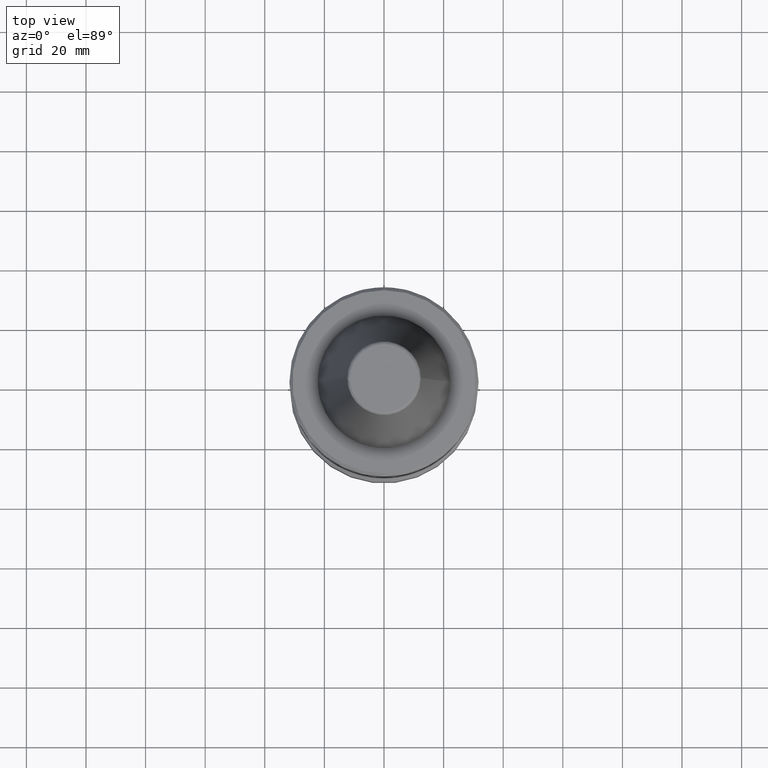
[diagram: clean part render]
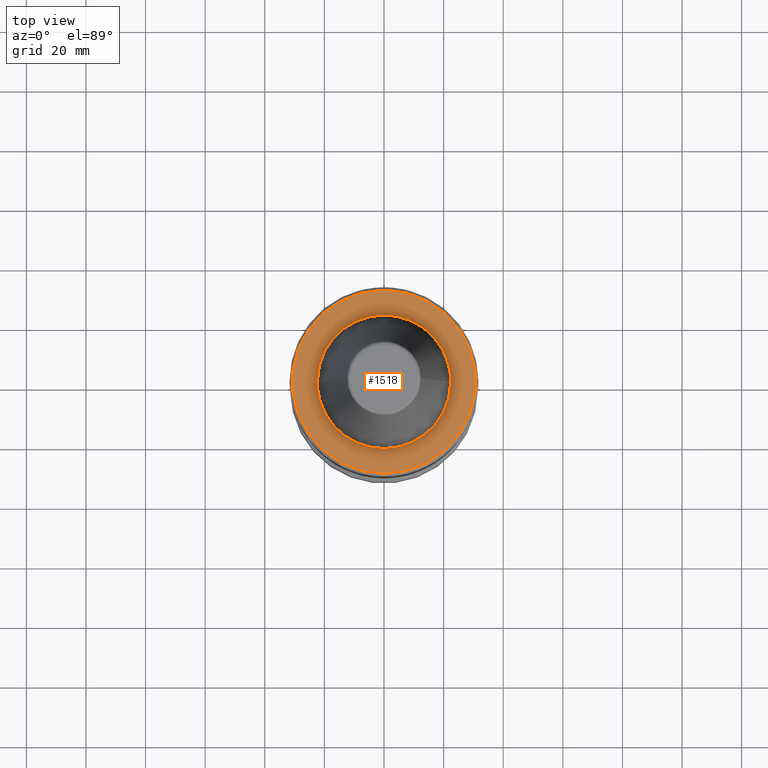
[diagram: same view with one face highlighted and labeled with its STEP entity id]
A machine part, top view. The second image highlights one B-rep face of the part: STEP entity #1518.
In plain terms, the highlighted planar face has unit normal (0, 0, 1).
Its self-contained STEP definition (entity closure, byte-faithful):
#12 = CARTESIAN_POINT ( 'NONE',  ( 11.93926672234661600, 18.95319761189779900, -3.200000000000000200 ) ) ;
#22 = CARTESIAN_POINT ( 'NONE',  ( 19.73326017952800600, 10.64749209983573800, -3.200000000000000600 ) ) ;
#26 = CARTESIAN_POINT ( 'NONE',  ( 22.00934566652811600, 4.165236834129904000, -3.199999999999999700 ) ) ;
#31 = CARTESIAN_POINT ( 'NONE',  ( -19.10378740212566800, 11.69915882717799400, -3.200000000000000200 ) ) ;
#35 = CARTESIAN_POINT ( 'NONE',  ( -11.62407890250933200, 19.16283711776219100, -3.200000000000000600 ) ) ;
#37 = VERTEX_POINT ( 'NONE', #606 ) ;
#41 = CARTESIAN_POINT ( 'NONE',  ( -4.232134916872230000, 21.99665153859961500, -3.199999999999999300 ) ) ;
#51 = CARTESIAN_POINT ( 'NONE',  ( 4.033857983350539000, 22.03380165289005200, -3.199999999999999700 ) ) ;
#63 = CARTESIAN_POINT ( 'NONE',  ( 4.120618964739917600, -22.01774244159595300, -3.199999999999998800 ) ) ;
#65 = CARTESIAN_POINT ( 'NONE',  ( 22.35325503157195500, -1.708173286637779000, -3.199999999999999300 ) ) ;
#72 = FACE_OUTER_BOUND ( 'NONE', #462, .T. ) ;
#73 = CARTESIAN_POINT ( 'NONE',  ( -4.790134707266156900, -21.89390021214669000, -3.200000000000000200 ) ) ;
#74 = CARTESIAN_POINT ( 'NONE',  ( 20.89346074641959900, -8.076228125856765400, -3.200000000000000600 ) ) ;
#77 = CARTESIAN_POINT ( 'NONE',  ( -12.09879233618214300, -18.85174391164229500, -3.199999999999999700 ) ) ;
#79 = CARTESIAN_POINT ( 'NONE',  ( 14.43493962123207900, -17.15946693183769500, -3.200000000000000200 ) ) ;
#86 = CARTESIAN_POINT ( 'NONE',  ( -20.30988273405735400, -9.461840305276322000, -3.200000000000001100 ) ) ;
#87 = CARTESIAN_POINT ( 'NONE',  ( 8.287526769556091500, -20.81054813449515700, -3.199999999999999700 ) ) ;
#94 = CARTESIAN_POINT ( 'NONE',  ( -22.01774244185277100, -4.120618964732502200, -3.199999999999999700 ) ) ;
#102 = EDGE_CURVE ( 'NONE', #37, #1022, #1876, .T. ) ;
#118 = CARTESIAN_POINT ( 'NONE',  ( -22.05288208983766300, 3.928562165238993500, -3.200000000000000200 ) ) ;
#119 = CIRCLE ( 'NONE', #289, 30.75000000000005700 ) ;
#153 = CARTESIAN_POINT ( 'NONE',  ( 0.0000000000000000000, 0.0000000000000000000, -3.200000000000036100 ) ) ;
#157 = CARTESIAN_POINT ( 'NONE',  ( 5.846925097339448200, 21.64494739346537200, -3.200000000000001100 ) ) ;
#165 = CARTESIAN_POINT ( 'NONE',  ( 12.17662042402640000, 18.80157304466486700, -3.199999999999999700 ) ) ;
#170 = CARTESIAN_POINT ( 'NONE',  ( 20.57597625700413600, 8.857439276734092800, -3.200000000000000200 ) ) ;
#176 = CARTESIAN_POINT ( 'NONE',  ( 22.02214483845452300, 4.097019922437556100, -3.199999999999999700 ) ) ;
#184 = CARTESIAN_POINT ( 'NONE',  ( -18.85174391178525300, 12.09879233613577300, -3.200000000000000600 ) ) ;
#193 = CARTESIAN_POINT ( 'NONE',  ( -9.461840305300203400, 20.30988273388436800, -3.200000000000000600 ) ) ;
#198 = CARTESIAN_POINT ( 'NONE',  ( -4.120618964735781400, 22.01774244159689400, -3.200000000000000200 ) ) ;
#220 = CARTESIAN_POINT ( 'NONE',  ( 2.729104585065736300, -22.27531430427199100, -3.200000000000000200 ) ) ;
#221 = CARTESIAN_POINT ( 'NONE',  ( 22.12829487095392600, -3.485869751669867300, -3.200000000000000200 ) ) ;
#226 = CARTESIAN_POINT ( 'NONE',  ( -7.054554276473416200, -21.26570261097682400, -3.200000000000000600 ) ) ;
#228 = CARTESIAN_POINT ( 'NONE',  ( 20.84466756713284900, -8.201342718980848500, -3.199999999999999700 ) ) ;
#234 = CARTESIAN_POINT ( 'NONE',  ( -13.55154730268490600, -17.90272195314502600, -3.199999999999999700 ) ) ;
#236 = CARTESIAN_POINT ( 'NONE',  ( 12.81838125876502100, -18.37163761246610600, -3.200000000000000200 ) ) ;
#240 = CARTESIAN_POINT ( 'NONE',  ( 3.827021247335484400E-015, -30.75000000000005700, -3.200000000000036100 ) ) ;
#245 = CARTESIAN_POINT ( 'NONE',  ( -20.70346857988444000, -8.552344979681706100, -3.200000000000000200 ) ) ;
#247 = B_SPLINE_CURVE_WITH_KNOTS ( 'NONE', 3,
 ( #1456, #413, #1751, #866, #1902, #1024, #118, #1172, #278, #1319, #420, #1466, #573, #1610, #716, #1766, #874, #1909, #1034, #437, #927, #31, #1081, #184, #1228, #332, #1374, #481, #1525, #635, #1675, #775, #1820, #935, #35, #1084, #193, #1237, #333, #1379, #490, #1528, #640, #1681, #783, #1824, #941, #41, #1091, #198, #1243, #341, #1383, #495, #1536, #647, #1685, #792, #1833, #949, #51, #1101, #1059, #157, #1201, #310, #1351, #459, #1498, #614, #1648, #750, #1795, #912, #12, #1063, #165, #1209, #312, #1357, #468, #1505, #616, #1657, #758, #1801, #916, #22, #1067, #170, #1218, #319, #1359, #473, #1514, #623, #1662, #766, #1808, #921, #26, #1076, #176, #1223, #662, #1705 ),
 .UNSPECIFIED., .F., .F.,
 ( 4, 1, 1, 1, 1, 1, 2, 2, 1, 1, 1, 1, 2, 2, 1, 1, 1, 2, 2, 2, 1, 1, 1, 2, 2, 1, 1, 1, 1, 2, 2, 1, 1, 1, 1, 1, 2, 2, 2, 1, 1, 1, 1, 1, 2, 2, 1, 1, 1, 1, 2, 2, 1, 1, 1, 2, 2, 2, 1, 1, 1, 2, 2, 1, 1, 1, 1, 2, 2, 1, 1, 1, 1, 1, 2, 2, 4 ),
 ( 0.0000000000000000000, 0.03124999999999886200, 0.04687499999999829300, 0.05468749999999800200, 0.05859374999999785600, 0.06054687499999776600, 0.06152343749999775900, 0.06249999999999775200, 0.09374999999999736300, 0.1093749999999971800, 0.1171874999999970900, 0.1210937499999970400, 0.1230468749999970400, 0.1249999999999970600, 0.1562499999999970900, 0.1718749999999971100, 0.1796874999999971400, 0.1835937499999972000, 0.1874999999999972500, 0.2499999999999975600, 0.2812499999999976100, 0.2968749999999977200, 0.3046874999999978400, 0.3085937499999978900, 0.3124999999999978900, 0.3437499999999986100, 0.3593749999999990600, 0.3671874999999992800, 0.3710937499999993900, 0.3730468749999993900, 0.3749999999999994400, 0.4062499999999997200, 0.4218749999999998900, 0.4296875000000000000, 0.4335937500000001100, 0.4355468750000001100, 0.4365234375000001700, 0.4375000000000001700, 0.5000000000000030000, 0.5312500000000044400, 0.5468750000000051100, 0.5546875000000054400, 0.5585937500000056600, 0.5605468750000056600, 0.5615234375000056600, 0.5625000000000055500, 0.5937500000000055500, 0.6093750000000055500, 0.6171875000000055500, 0.6210937500000054400, 0.6230468750000055500, 0.6250000000000055500, 0.6562500000000054400, 0.6718750000000054400, 0.6796875000000053300, 0.6835937500000053300, 0.6875000000000052200, 0.7500000000000037700, 0.7812500000000031100, 0.7968750000000027800, 0.8046875000000025500, 0.8085937500000024400, 0.8125000000000022200, 0.8437500000000017800, 0.8593750000000015500, 0.8671875000000015500, 0.8710937500000014400, 0.8730468750000015500, 0.8750000000000015500, 0.9062500000000005600, 0.9218750000000001100, 0.9296874999999997800, 0.9335937499999996700, 0.9355468749999995600, 0.9365234374999995600, 0.9374999999999994400, 1.000000000000000000 ),
 .UNSPECIFIED. ) ;
#249 = CARTESIAN_POINT ( 'NONE',  ( -22.27534675083843800, -2.728929272534675200, -3.199999999999999700 ) ) ;
#278 = CARTESIAN_POINT ( 'NONE',  ( -22.03380064764238700, 4.033863417683678100, -3.200000000000000600 ) ) ;
#289 = AXIS2_PLACEMENT_3D ( 'NONE', #153, #1198, #307 ) ;
#307 = DIRECTION ( 'NONE',  ( 1.000000000000000000, 0.0000000000000000000, 0.0000000000000000000 ) ) ;
#310 = CARTESIAN_POINT ( 'NONE',  ( 7.652045630527966900, 21.05388026285381600, -3.200000000000000200 ) ) ;
#312 = CARTESIAN_POINT ( 'NONE',  ( 14.74595008192743300, 16.93238115486318000, -3.200000000000000200 ) ) ;
#319 = CARTESIAN_POINT ( 'NONE',  ( 20.75691790999887900, 8.420970184616752600, -3.199999999999999300 ) ) ;
#332 = CARTESIAN_POINT ( 'NONE',  ( -17.90272195326314600, 13.55154730262204600, -3.199999999999999700 ) ) ;
#333 = CARTESIAN_POINT ( 'NONE',  ( -8.552344979703818200, 20.70346857969284600, -3.199999999999999700 ) ) ;
#341 = CARTESIAN_POINT ( 'NONE',  ( -2.729104584988504300, 22.27531430428096100, -3.200000000000000600 ) ) ;
#355 = CARTESIAN_POINT ( 'NONE',  ( -0.6848705029465765900, -22.40001621447455100, -3.200000000000001500 ) ) ;
#356 = CARTESIAN_POINT ( 'NONE',  ( 22.05288208983765200, -3.928562165245737400, -3.199999999999999700 ) ) ;
#368 = CARTESIAN_POINT ( 'NONE',  ( -7.949210498591572400, -20.94241909959589500, -3.199999999999999700 ) ) ;
#370 = CARTESIAN_POINT ( 'NONE',  ( 20.07996867647971200, -9.978249319401854200, -3.200000000000000200 ) ) ;
#375 = CARTESIAN_POINT ( 'NONE',  ( -16.38581280670978300, -15.29259727012551200, -3.200000000000000600 ) ) ;
#376 = CARTESIAN_POINT ( 'NONE',  ( 12.41893087777592800, -18.64241366082403000, -3.200000000000000600 ) ) ;
#383 = CARTESIAN_POINT ( 'NONE',  ( -20.79228629966295500, -8.333249188734342300, -3.200000000000000200 ) ) ;
#387 = CARTESIAN_POINT ( 'NONE',  ( -22.40000000007490400, 3.033704078844070700E-015, -3.199999999933531600 ) ) ;
#413 = CARTESIAN_POINT ( 'NONE',  ( -22.40000000001206700, 0.6849581370484418800, -3.200000000000000600 ) ) ;
#420 = CARTESIAN_POINT ( 'NONE',  ( -21.89390021239910000, 4.790134707247299900, -3.199999999999999700 ) ) ;
#437 = CARTESIAN_POINT ( 'NONE',  ( -20.07996867646455300, 9.978249319444822500, -3.200000000000000200 ) ) ;
#452 = CARTESIAN_POINT ( 'NONE',  ( 0.0000000000000000000, 0.0000000000000000000, -3.200000000000036100 ) ) ;
#459 = CARTESIAN_POINT ( 'NONE',  ( 8.076228125885613500, 20.89346074621681400, -3.199999999999999300 ) ) ;
#462 = EDGE_LOOP ( 'NONE', ( #607, #569 ) ) ;
#468 = CARTESIAN_POINT ( 'NONE',  ( 17.15946693201172500, 14.43493962109121800, -3.200000000000000600 ) ) ;
#473 = CARTESIAN_POINT ( 'NONE',  ( 20.81054813469236800, 8.287526769536707900, -3.200000000000000200 ) ) ;
#481 = CARTESIAN_POINT ( 'NONE',  ( -15.29259727022935200, 16.38581280659349600, -3.199999999999999700 ) ) ;
#490 = CARTESIAN_POINT ( 'NONE',  ( -8.333249188756394000, 20.79228629946642600, -3.200000000000000200 ) ) ;
#495 = CARTESIAN_POINT ( 'NONE',  ( 0.6848705029950623600, 22.40001621447006000, -3.199999999999999700 ) ) ;
#506 = CARTESIAN_POINT ( 'NONE',  ( 7.570037086748086200, -21.09461488787517800, -3.199999999999999700 ) ) ;
#515 = FACE_BOUND ( 'NONE', #724, .T. ) ;
#516 = CARTESIAN_POINT ( 'NONE',  ( -2.894420676546212200, -22.21693682189650700, -3.200000000000000600 ) ) ;
#517 = CARTESIAN_POINT ( 'NONE',  ( 22.03380064764238400, -4.033863417685646300, -3.200000000000000600 ) ) ;
#523 = CARTESIAN_POINT ( 'NONE',  ( -8.160831267445345800, -20.86055755876945400, -3.200000000000000200 ) ) ;
#524 = CARTESIAN_POINT ( 'NONE',  ( 19.10378740213231200, -11.69915882715920000, -3.200000000000001100 ) ) ;
#526 = CARTESIAN_POINT ( 'NONE',  ( -17.98107824656288400, -13.36824904393557600, -3.200000000000001100 ) ) ;
#527 = CARTESIAN_POINT ( 'NONE',  ( 11.62407890255767700, -19.16283711773133200, -3.200000000000000600 ) ) ;
#535 = CARTESIAN_POINT ( 'NONE',  ( -21.09461488808972300, -7.570037086696678400, -3.200000000000001100 ) ) ;
#544 = B_SPLINE_CURVE_WITH_KNOTS ( 'NONE', 3,
 ( #1256, #806, #65, #1112, #221, #1266, #356, #1406, #517, #1555, #664, #1708, #819, #1852, #974, #74, #1123, #228, #1272, #370, #1414, #524, #1567, #674, #1714, #827, #1862, #979, #79, #1132, #236, #1277, #376, #1427, #527, #1570, #682, #1722, #831, #1867, #987, #87, #506, #1545, #657, #1698, #805, #1843, #968, #63, #1111, #220, #1264, #355, #1405, #516, #1553, #663, #1707, #817, #1851, #973, #73, #1121, #226, #1271, #368, #1413, #523, #1566, #672, #1713, #826, #1860, #978, #77, #1131, #234, #1276, #375, #1426, #526, #1569, #681, #1719, #830, #1866, #986, #86, #1137, #245, #1283, #383, #1432, #535, #1574, #686, #1727, #836, #1870, #992, #94, #1141, #249, #1292, #387 ),
 .UNSPECIFIED., .F., .F.,
 ( 4, 1, 1, 1, 1, 1, 2, 2, 1, 1, 1, 1, 2, 2, 1, 1, 1, 2, 2, 2, 1, 1, 1, 2, 2, 1, 1, 1, 1, 2, 2, 1, 1, 1, 1, 1, 2, 2, 2, 1, 1, 1, 1, 1, 2, 2, 1, 1, 1, 1, 2, 2, 1, 1, 1, 2, 2, 2, 1, 1, 1, 2, 2, 1, 1, 1, 1, 2, 2, 1, 1, 1, 1, 1, 2, 2, 4 ),
 ( 0.0000000000000000000, 0.03125000000000181100, 0.04687500000000269900, 0.05468750000000315000, 0.05859375000000337200, 0.06054687500000349700, 0.06152343750000354600, 0.06250000000000359400, 0.09375000000000449600, 0.1093750000000050000, 0.1171875000000052300, 0.1210937500000053400, 0.1230468750000054300, 0.1250000000000055000, 0.1562500000000061600, 0.1718750000000064700, 0.1796875000000065800, 0.1835937500000066100, 0.1875000000000066300, 0.2500000000000060000, 0.2812500000000056600, 0.2968750000000053800, 0.3046875000000051600, 0.3085937500000051100, 0.3125000000000050500, 0.3437500000000046600, 0.3593750000000044400, 0.3671875000000043300, 0.3710937500000042700, 0.3730468750000042700, 0.3750000000000042700, 0.4062500000000048800, 0.4218750000000051600, 0.4296875000000053300, 0.4335937500000054400, 0.4355468750000055000, 0.4365234375000055500, 0.4375000000000056100, 0.5000000000000067700, 0.5312500000000073300, 0.5468750000000075500, 0.5546875000000077700, 0.5585937500000077700, 0.5605468750000077700, 0.5615234375000077700, 0.5625000000000078800, 0.5937500000000076600, 0.6093750000000075500, 0.6171875000000075500, 0.6210937500000075500, 0.6230468750000075500, 0.6250000000000075500, 0.6562500000000075500, 0.6718750000000074400, 0.6796875000000073300, 0.6835937500000073300, 0.6875000000000073300, 0.7500000000000068800, 0.7812500000000067700, 0.7968750000000066600, 0.8046875000000066600, 0.8085937500000066600, 0.8125000000000066600, 0.8437500000000065500, 0.8593750000000066600, 0.8671875000000066600, 0.8710937500000066600, 0.8730468750000066600, 0.8750000000000066600, 0.9062500000000058800, 0.9218750000000054400, 0.9296875000000052200, 0.9335937500000051100, 0.9355468750000050000, 0.9365234375000050000, 0.9375000000000048800, 1.000000000000000000 ),
 .UNSPECIFIED. ) ;
#561 = AXIS2_PLACEMENT_3D ( 'NONE', #452, #1493, #603 ) ;
#569 = ORIENTED_EDGE ( 'NONE', *, *, #608, .T. ) ;
#573 = CARTESIAN_POINT ( 'NONE',  ( -21.26570261119915300, 7.054554276442058100, -3.199999999999999700 ) ) ;
#603 = DIRECTION ( 'NONE',  ( 1.000000000000000000, 0.0000000000000000000, 0.0000000000000000000 ) ) ;
#606 = CARTESIAN_POINT ( 'NONE',  ( 0.0000000000000000000, 30.75000000000005700, -3.200000000000036100 ) ) ;
#607 = ORIENTED_EDGE ( 'NONE', *, *, #102, .T. ) ;
#608 = EDGE_CURVE ( 'NONE', #1022, #37, #119, .T. ) ;
#614 = CARTESIAN_POINT ( 'NONE',  ( 8.201342718999095300, 20.84466756693541700, -3.199999999999999700 ) ) ;
#616 = CARTESIAN_POINT ( 'NONE',  ( 18.37163761262777600, 12.81838125867904100, -3.200000000000001100 ) ) ;
#623 = CARTESIAN_POINT ( 'NONE',  ( 21.44498038497613700, 6.542405141127492400, -3.200000000000000200 ) ) ;
#631 = VERTEX_POINT ( 'NONE', #1061 ) ;
#635 = CARTESIAN_POINT ( 'NONE',  ( -13.36824904402311600, 17.98107824641441300, -3.199999999999998800 ) ) ;
#640 = CARTESIAN_POINT ( 'NONE',  ( -7.570037086681407100, 21.09461488789033700, -3.199999999999999700 ) ) ;
#647 = CARTESIAN_POINT ( 'NONE',  ( 2.894420676609871000, 22.21693682189062000, -3.200000000000001100 ) ) ;
#657 = CARTESIAN_POINT ( 'NONE',  ( 5.317766869395559800, -21.76506777162947900, -3.199999999999999700 ) ) ;
#658 = DIRECTION ( 'NONE',  ( 1.000000000000000000, 0.0000000000000000000, -0.0000000000000000000 ) ) ;
#662 = CARTESIAN_POINT ( 'NONE',  ( 22.40000000001205600, 1.370271814513544200, -3.199999999999998800 ) ) ;
#663 = CARTESIAN_POINT ( 'NONE',  ( -3.781039048267576400, -22.07887845569050400, -3.199999999999999300 ) ) ;
#664 = CARTESIAN_POINT ( 'NONE',  ( 21.89390021238643800, -4.790134707281838500, -3.200000000000000600 ) ) ;
#672 = CARTESIAN_POINT ( 'NONE',  ( -8.948981895613327400, -20.54870396885634800, -3.200000000000000200 ) ) ;
#674 = CARTESIAN_POINT ( 'NONE',  ( 18.85174391178735600, -12.09879233612983100, -3.200000000000000600 ) ) ;
#681 = CARTESIAN_POINT ( 'NONE',  ( -18.53468170709297500, -12.57918310143750400, -3.200000000000000200 ) ) ;
#682 = CARTESIAN_POINT ( 'NONE',  ( 9.461840305363646000, -20.30988273384388900, -3.199999999999999700 ) ) ;
#686 = CARTESIAN_POINT ( 'NONE',  ( -21.76506777187765700, -5.317766869343208700, -3.200000000000001100 ) ) ;
#716 = CARTESIAN_POINT ( 'NONE',  ( -20.94241909980081200, 7.949210498566293900, -3.200000000000000200 ) ) ;
#724 = EDGE_LOOP ( 'NONE', ( #812, #1721 ) ) ;
#750 = CARTESIAN_POINT ( 'NONE',  ( 9.978249319534406000, 20.07996867625664100, -3.199999999999999300 ) ) ;
#758 = CARTESIAN_POINT ( 'NONE',  ( 18.64241366097266100, 12.41893087771388700, -3.200000000000001500 ) ) ;
#766 = CARTESIAN_POINT ( 'NONE',  ( 21.90294337547564000, 4.699014149594688700, -3.200000000000000600 ) ) ;
#775 = CARTESIAN_POINT ( 'NONE',  ( -12.57918310150069800, 18.53468170694757300, -3.199999999999999300 ) ) ;
#783 = CARTESIAN_POINT ( 'NONE',  ( -5.317766869308041300, 21.76506777164937700, -3.200000000000000600 ) ) ;
#792 = CARTESIAN_POINT ( 'NONE',  ( 3.781039048287465800, 22.07887845568866000, -3.200000000000001100 ) ) ;
#805 = CARTESIAN_POINT ( 'NONE',  ( 4.388029393796852400, -21.96633915454783900, -3.200000000000000600 ) ) ;
#806 = CARTESIAN_POINT ( 'NONE',  ( 22.40000000001206400, -0.6849581370803684600, -3.200000000000000200 ) ) ;
#812 = ORIENTED_EDGE ( 'NONE', *, *, #1523, .T. ) ;
#817 = CARTESIAN_POINT ( 'NONE',  ( -3.991735474879803700, -22.04147173102793600, -3.200000000000000600 ) ) ;
#819 = CARTESIAN_POINT ( 'NONE',  ( 21.26570261118254000, -7.054554276487397000, -3.199999999999999700 ) ) ;
#826 = CARTESIAN_POINT ( 'NONE',  ( -11.13317075167021900, -19.44402825650168500, -3.200000000000000600 ) ) ;
#827 = CARTESIAN_POINT ( 'NONE',  ( 17.90272195331619200, -13.55154730256403000, -3.200000000000000600 ) ) ;
#830 = CARTESIAN_POINT ( 'NONE',  ( -18.69693224284720800, -12.33667592231107300, -3.200000000000000200 ) ) ;
#831 = CARTESIAN_POINT ( 'NONE',  ( 8.552344979723638800, -20.70346857968020200, -3.200000000000000200 ) ) ;
#836 = CARTESIAN_POINT ( 'NONE',  ( -21.96633915480318000, -4.388029393777210400, -3.200000000000000200 ) ) ;
#866 = CARTESIAN_POINT ( 'NONE',  ( -22.21691554028830100, 2.894535696302347600, -3.200000000000000600 ) ) ;
#874 = CARTESIAN_POINT ( 'NONE',  ( -20.86055755896984500, 8.160831267422304700, -3.200000000000001100 ) ) ;
#912 = CARTESIAN_POINT ( 'NONE',  ( 11.69915882724917800, 19.10378740196084400, -3.200000000000000200 ) ) ;
#916 = CARTESIAN_POINT ( 'NONE',  ( 19.16283711791558600, 11.62407890244600700, -3.200000000000000600 ) ) ;
#921 = CARTESIAN_POINT ( 'NONE',  ( 21.99665153885375800, 4.232134916870864000, -3.200000000000000600 ) ) ;
#927 = CARTESIAN_POINT ( 'NONE',  ( -19.44402825665141400, 11.13317075164720500, -3.199999999999999700 ) ) ;
#935 = CARTESIAN_POINT ( 'NONE',  ( -12.33667592236353300, 18.69693224270523000, -3.199999999999999300 ) ) ;
#941 = CARTESIAN_POINT ( 'NONE',  ( -4.388029393769517800, 21.96633915455406300, -3.200000000000001100 ) ) ;
#944 = EDGE_CURVE ( 'NONE', #1760, #631, #247, .T. ) ;
#949 = CARTESIAN_POINT ( 'NONE',  ( 3.991735474885761600, 22.04147173102736800, -3.200000000000000200 ) ) ;
#968 = CARTESIAN_POINT ( 'NONE',  ( 4.165236834141072800, -22.00934566627088500, -3.199999999999999700 ) ) ;
#973 = CARTESIAN_POINT ( 'NONE',  ( -4.053654801067184000, -22.03016962848689500, -3.200000000000000600 ) ) ;
#974 = CARTESIAN_POINT ( 'NONE',  ( 20.94241909979561500, -7.949210498580471900, -3.199999999999999700 ) ) ;
#978 = CARTESIAN_POINT ( 'NONE',  ( -11.93926672232511900, -18.95319761190958700, -3.199999999999999700 ) ) ;
#979 = CARTESIAN_POINT ( 'NONE',  ( 15.29259727023877400, -16.38581280658656100, -3.200000000000001500 ) ) ;
#986 = CARTESIAN_POINT ( 'NONE',  ( -19.73326017951273700, -10.64749209987434000, -3.200000000000001500 ) ) ;
#987 = CARTESIAN_POINT ( 'NONE',  ( 8.333249188762328800, -20.79228629946263500, -3.199999999999999700 ) ) ;
#992 = CARTESIAN_POINT ( 'NONE',  ( -22.00934566652747300, -4.165236834131537300, -3.199999999999999700 ) ) ;
#1022 = VERTEX_POINT ( 'NONE', #240 ) ;
#1024 = CARTESIAN_POINT ( 'NONE',  ( -22.07887180536361200, 3.781074991937666900, -3.199999999999999700 ) ) ;
#1034 = CARTESIAN_POINT ( 'NONE',  ( -20.54870396903868700, 8.948981895601424000, -3.200000000000001100 ) ) ;
#1059 = CARTESIAN_POINT ( 'NONE',  ( 4.790134707321071200, 21.89390021213176100, -3.200000000000000600 ) ) ;
#1061 = CARTESIAN_POINT ( 'NONE',  ( 22.40000000007490400, 0.0000000000000000000, -3.199999999933531600 ) ) ;
#1063 = CARTESIAN_POINT ( 'NONE',  ( 12.09879233619343900, 18.85174391163609200, -3.200000000000000200 ) ) ;
#1067 = CARTESIAN_POINT ( 'NONE',  ( 20.30988273406881500, 9.461840305247369200, -3.199999999999999300 ) ) ;
#1076 = CARTESIAN_POINT ( 'NONE',  ( 22.01774244185310500, 4.120618964731678900, -3.199999999999998800 ) ) ;
#1081 = CARTESIAN_POINT ( 'NONE',  ( -18.95319761205339000, 11.93926672228324600, -3.200000000000000200 ) ) ;
#1084 = CARTESIAN_POINT ( 'NONE',  ( -10.64749209990448600, 19.73326017935920600, -3.199999999999999700 ) ) ;
#1091 = CARTESIAN_POINT ( 'NONE',  ( -4.165236834132898900, 22.00934566627274000, -3.199999999999999700 ) ) ;
#1101 = CARTESIAN_POINT ( 'NONE',  ( 4.053654801065473400, 22.03016962848735400, -3.199999999999999300 ) ) ;
#1108 = CARTESIAN_POINT ( 'NONE',  ( -30.95132634999999900, -29.65760573300000400, -3.200000000000000200 ) ) ;
#1111 = CARTESIAN_POINT ( 'NONE',  ( 4.097017183184132000, -22.02214534517107600, -3.200000000000000200 ) ) ;
#1112 = CARTESIAN_POINT ( 'NONE',  ( 22.21691554028830500, -2.894535696344255900, -3.200000000000000200 ) ) ;
#1121 = CARTESIAN_POINT ( 'NONE',  ( -5.846925097243358000, -21.64494739349149600, -3.200000000000000600 ) ) ;
#1123 = CARTESIAN_POINT ( 'NONE',  ( 20.86055755896828500, -8.160831267426553700, -3.200000000000000600 ) ) ;
#1131 = CARTESIAN_POINT ( 'NONE',  ( -12.17662042402733000, -18.80157304466364100, -3.200000000000000200 ) ) ;
#1132 = CARTESIAN_POINT ( 'NONE',  ( 13.36824904403549900, -17.98107824640531000, -3.199999999999999300 ) ) ;
#1137 = CARTESIAN_POINT ( 'NONE',  ( -20.57597625699743900, -8.857439276750971800, -3.200000000000001100 ) ) ;
#1141 = CARTESIAN_POINT ( 'NONE',  ( -22.02214483845452300, -4.097019922437103100, -3.199999999999999700 ) ) ;
#1172 = CARTESIAN_POINT ( 'NONE',  ( -22.04146974402709000, 3.991746215187080600, -3.200000000000000200 ) ) ;
#1198 = DIRECTION ( 'NONE',  ( -0.0000000000000000000, -0.0000000000000000000, 1.000000000000000000 ) ) ;
#1201 = CARTESIAN_POINT ( 'NONE',  ( 7.054554276545477600, 21.26570261095722700, -3.199999999999998400 ) ) ;
#1209 = CARTESIAN_POINT ( 'NONE',  ( 13.55154730269961200, 17.90272195312534000, -3.199999999999999700 ) ) ;
#1218 = CARTESIAN_POINT ( 'NONE',  ( 20.70346857988801400, 8.552344979672664500, -3.200000000000000200 ) ) ;
#1220 = CARTESIAN_POINT ( 'NONE',  ( -22.40000000007490400, 3.033704078844070700E-015, -3.199999999933531600 ) ) ;
#1223 = CARTESIAN_POINT ( 'NONE',  ( 22.27534675083844100, 2.728929272505884000, -3.200000000000000200 ) ) ;
#1228 = CARTESIAN_POINT ( 'NONE',  ( -18.80157304480741600, 12.17662042397683600, -3.199999999999999700 ) ) ;
#1237 = CARTESIAN_POINT ( 'NONE',  ( -8.857439276773394700, 20.57597625681244900, -3.200000000000001100 ) ) ;
#1243 = CARTESIAN_POINT ( 'NONE',  ( -4.097017183185343500, 22.02214534517091900, -3.199999999999999700 ) ) ;
#1256 = CARTESIAN_POINT ( 'NONE',  ( 22.40000000007490400, 0.0000000000000000000, -3.199999999933531600 ) ) ;
#1264 = CARTESIAN_POINT ( 'NONE',  ( 1.369741005893153800, -22.39996757014445400, -3.199999999999998800 ) ) ;
#1266 = CARTESIAN_POINT ( 'NONE',  ( 22.07887180536361500, -3.781074991950769300, -3.199999999999999700 ) ) ;
#1271 = CARTESIAN_POINT ( 'NONE',  ( -7.652045630485933900, -21.05388026286525300, -3.200000000000000600 ) ) ;
#1272 = CARTESIAN_POINT ( 'NONE',  ( 20.54870396904735200, -8.948981895576865900, -3.199999999999999700 ) ) ;
#1276 = CARTESIAN_POINT ( 'NONE',  ( -14.74595008195156300, -16.93238115484403000, -3.200000000000000200 ) ) ;
#1277 = CARTESIAN_POINT ( 'NONE',  ( 12.57918310150505000, -18.53468170694437600, -3.200000000000000200 ) ) ;
#1283 = CARTESIAN_POINT ( 'NONE',  ( -20.75691790999677600, -8.420970184622047900, -3.199999999999999700 ) ) ;
#1292 = CARTESIAN_POINT ( 'NONE',  ( -22.40000000001206400, -1.370271814542337600, -3.200000000000000200 ) ) ;
#1319 = CARTESIAN_POINT ( 'NONE',  ( -22.03016962874407600, 4.053654801062372700, -3.199999999999999300 ) ) ;
#1351 = CARTESIAN_POINT ( 'NONE',  ( 7.949210498614102800, 20.94241909958975300, -3.199999999999999300 ) ) ;
#1357 = CARTESIAN_POINT ( 'NONE',  ( 16.38581280672186600, 15.29259727011592700, -3.200000000000000200 ) ) ;
#1359 = CARTESIAN_POINT ( 'NONE',  ( 20.79228629966403800, 8.333249188731628000, -3.200000000000000200 ) ) ;
#1374 = CARTESIAN_POINT ( 'NONE',  ( -16.93238115491243800, 14.74595008190805800, -3.199999999999999300 ) ) ;
#1379 = CARTESIAN_POINT ( 'NONE',  ( -8.420970184644112100, 20.75691790980224400, -3.200000000000000200 ) ) ;
#1383 = CARTESIAN_POINT ( 'NONE',  ( -1.369741005990152200, 22.39996757015341800, -3.199999999999999700 ) ) ;
#1405 = CARTESIAN_POINT ( 'NONE',  ( -1.708019926904278600, -22.35328340712411300, -3.200000000000001100 ) ) ;
#1406 = CARTESIAN_POINT ( 'NONE',  ( 22.04146974402709300, -3.991746215190984200, -3.200000000000001100 ) ) ;
#1413 = CARTESIAN_POINT ( 'NONE',  ( -8.076228125872425800, -20.89346074622041300, -3.199999999999999700 ) ) ;
#1414 = CARTESIAN_POINT ( 'NONE',  ( 19.44402825666279400, -11.13317075161497800, -3.200000000000000600 ) ) ;
#1426 = CARTESIAN_POINT ( 'NONE',  ( -17.15946693199058600, -14.43493962110799700, -3.200000000000000600 ) ) ;
#1427 = CARTESIAN_POINT ( 'NONE',  ( 12.33667592235750000, -18.69693224270909200, -3.200000000000000200 ) ) ;
#1432 = CARTESIAN_POINT ( 'NONE',  ( -20.81054813469269900, -8.287526769535862300, -3.199999999999999700 ) ) ;
#1456 = CARTESIAN_POINT ( 'NONE',  ( -22.40000000007490400, 3.033704078844070700E-015, -3.199999999933531600 ) ) ;
#1466 = CARTESIAN_POINT ( 'NONE',  ( -21.64494739373313700, 5.846925097212180200, -3.200000000000001100 ) ) ;
#1493 = DIRECTION ( 'NONE',  ( -0.0000000000000000000, -0.0000000000000000000, 1.000000000000000000 ) ) ;
#1498 = CARTESIAN_POINT ( 'NONE',  ( 8.160831267452101300, 20.86055755876760300, -3.200000000000000200 ) ) ;
#1505 = CARTESIAN_POINT ( 'NONE',  ( 17.98107824657872900, 13.36824904392301100, -3.200000000000000200 ) ) ;
#1514 = CARTESIAN_POINT ( 'NONE',  ( 21.09461488809503000, 7.570037086683287300, -3.200000000000000600 ) ) ;
#1518 = ADVANCED_FACE ( 'NONE', ( #515, #72 ), #1541, .T. ) ;
#1523 = EDGE_CURVE ( 'NONE', #631, #1760, #544, .T. ) ;
#1525 = CARTESIAN_POINT ( 'NONE',  ( -14.43493962121556600, 17.15946693184984500, -3.200000000000000600 ) ) ;
#1528 = CARTESIAN_POINT ( 'NONE',  ( -8.287526769560267700, 20.81054813449419100, -3.200000000000000200 ) ) ;
#1536 = CARTESIAN_POINT ( 'NONE',  ( 1.708019926989160100, 22.35328340711626900, -3.200000000000001500 ) ) ;
#1541 = PLANE ( 'NONE',  #1709 ) ;
#1545 = CARTESIAN_POINT ( 'NONE',  ( 6.542405141222245000, -21.44498038473301800, -3.199999999999999700 ) ) ;
#1546 = DIRECTION ( 'NONE',  ( 0.0000000000000000000, 0.0000000000000000000, 1.000000000000000000 ) ) ;
#1553 = CARTESIAN_POINT ( 'NONE',  ( -3.485802656789984200, -22.12830728511967100, -3.199999999999999300 ) ) ;
#1555 = CARTESIAN_POINT ( 'NONE',  ( 22.03016962874446700, -4.053654801061288300, -3.200000000000000600 ) ) ;
#1566 = CARTESIAN_POINT ( 'NONE',  ( -8.201342719002008500, -20.84466756693383600, -3.199999999999999700 ) ) ;
#1567 = CARTESIAN_POINT ( 'NONE',  ( 18.95319761205739100, -11.93926672227193100, -3.200000000000000200 ) ) ;
#1569 = CARTESIAN_POINT ( 'NONE',  ( -18.37163761261852500, -12.81838125868637800, -3.200000000000001500 ) ) ;
#1570 = CARTESIAN_POINT ( 'NONE',  ( 10.64749209998909200, -19.73326017930524000, -3.199999999999999700 ) ) ;
#1574 = CARTESIAN_POINT ( 'NONE',  ( -21.44498038496685800, -6.542405141150924300, -3.200000000000000600 ) ) ;
#1610 = CARTESIAN_POINT ( 'NONE',  ( -21.05388026307624800, 7.652045630458060200, -3.200000000000000200 ) ) ;
#1648 = CARTESIAN_POINT ( 'NONE',  ( 8.948981895659983400, 20.54870396883077200, -3.200000000000001100 ) ) ;
#1657 = CARTESIAN_POINT ( 'NONE',  ( 18.53468170709854900, 12.57918310143308500, -3.200000000000000200 ) ) ;
#1662 = CARTESIAN_POINT ( 'NONE',  ( 21.76506777188460600, 5.317766869325653000, -3.200000000000000200 ) ) ;
#1675 = CARTESIAN_POINT ( 'NONE',  ( -12.81838125875778900, 18.37163761247143200, -3.199999999999999700 ) ) ;
#1681 = CARTESIAN_POINT ( 'NONE',  ( -6.542405141105545500, 21.44498038475956000, -3.200000000000000200 ) ) ;
#1685 = CARTESIAN_POINT ( 'NONE',  ( 3.485802656827125200, 22.12830728511623200, -3.199999999999999300 ) ) ;
#1698 = CARTESIAN_POINT ( 'NONE',  ( 4.699014149637257300, -21.90294337521830000, -3.200000000000000600 ) ) ;
#1705 = CARTESIAN_POINT ( 'NONE',  ( 22.40000000007490400, 0.0000000000000000000, -3.199999999933531600 ) ) ;
#1707 = CARTESIAN_POINT ( 'NONE',  ( -3.928543594345298200, -22.05288552571573000, -3.199999999999999700 ) ) ;
#1708 = CARTESIAN_POINT ( 'NONE',  ( 21.64494739371098200, -5.846925097272633200, -3.200000000000001100 ) ) ;
#1709 = AXIS2_PLACEMENT_3D ( 'NONE', #1108, #1546, #658 ) ;
#1713 = CARTESIAN_POINT ( 'NONE',  ( -9.978249319452757500, -20.07996867630140200, -3.200000000000000200 ) ) ;
#1714 = CARTESIAN_POINT ( 'NONE',  ( 18.80157304480411900, -12.17662042398047400, -3.200000000000001100 ) ) ;
#1719 = CARTESIAN_POINT ( 'NONE',  ( -18.64241366096973000, -12.41893087771620900, -3.200000000000000200 ) ) ;
#1721 = ORIENTED_EDGE ( 'NONE', *, *, #944, .T. ) ;
#1722 = CARTESIAN_POINT ( 'NONE',  ( 8.857439276810383800, -20.57597625678883400, -3.200000000000000600 ) ) ;
#1727 = CARTESIAN_POINT ( 'NONE',  ( -21.90294337547158000, -4.699014149604940900, -3.200000000000000600 ) ) ;
#1751 = CARTESIAN_POINT ( 'NONE',  ( -22.35325503157195500, 1.708173286581907700, -3.200000000000000200 ) ) ;
#1760 = VERTEX_POINT ( 'NONE', #1220 ) ;
#1766 = CARTESIAN_POINT ( 'NONE',  ( -20.89346074642263300, 8.076228125848468100, -3.199999999999999300 ) ) ;
#1795 = CARTESIAN_POINT ( 'NONE',  ( 11.13317075173144500, 19.44402825646812300, -3.199999999999999700 ) ) ;
#1801 = CARTESIAN_POINT ( 'NONE',  ( 18.69693224284611000, 12.33667592231383400, -3.200000000000001100 ) ) ;
#1808 = CARTESIAN_POINT ( 'NONE',  ( 21.96633915480534700, 4.388029393771716100, -3.200000000000000200 ) ) ;
#1820 = CARTESIAN_POINT ( 'NONE',  ( -12.41893087777363500, 18.64241366082571400, -3.200000000000000200 ) ) ;
#1824 = CARTESIAN_POINT ( 'NONE',  ( -4.699014149586205700, 21.90294337522989600, -3.200000000000000600 ) ) ;
#1833 = CARTESIAN_POINT ( 'NONE',  ( 3.928543594355590400, 22.05288552571478200, -3.199999999999998800 ) ) ;
#1843 = CARTESIAN_POINT ( 'NONE',  ( 4.232134916886362700, -21.99665153859641000, -3.200000000000000600 ) ) ;
#1851 = CARTESIAN_POINT ( 'NONE',  ( -4.033857983347518300, -22.03380165289034300, -3.199999999999999700 ) ) ;
#1852 = CARTESIAN_POINT ( 'NONE',  ( 21.05388026306655600, -7.652045630484495900, -3.200000000000000200 ) ) ;
#1860 = CARTESIAN_POINT ( 'NONE',  ( -11.69915882721346500, -19.10378740198042600, -3.200000000000000200 ) ) ;
#1862 = CARTESIAN_POINT ( 'NONE',  ( 16.93238115489359400, -14.74595008192192900, -3.200000000000000200 ) ) ;
#1866 = CARTESIAN_POINT ( 'NONE',  ( -19.16283711790684700, -11.62407890246806400, -3.200000000000000200 ) ) ;
#1867 = CARTESIAN_POINT ( 'NONE',  ( 8.420970184655711700, -20.75691790979484400, -3.200000000000000600 ) ) ;
#1870 = CARTESIAN_POINT ( 'NONE',  ( -21.99665153885264600, -4.232134916873683900, -3.200000000000000600 ) ) ;
#1876 = CIRCLE ( 'NONE', #561, 30.75000000000005700 ) ;
#1902 = CARTESIAN_POINT ( 'NONE',  ( -22.12829487095393300, 3.485869751645426000, -3.200000000000000200 ) ) ;
#1909 = CARTESIAN_POINT ( 'NONE',  ( -20.84466756713339900, 8.201342718979315500, -3.200000000000001100 ) ) ;